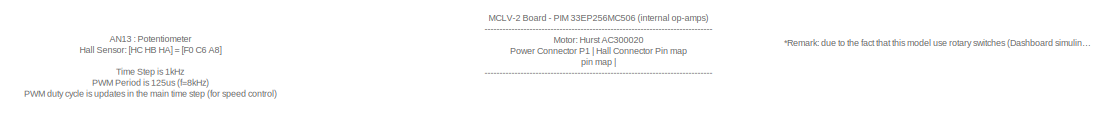
[diagram: root canvas - part 1/3, top left region]
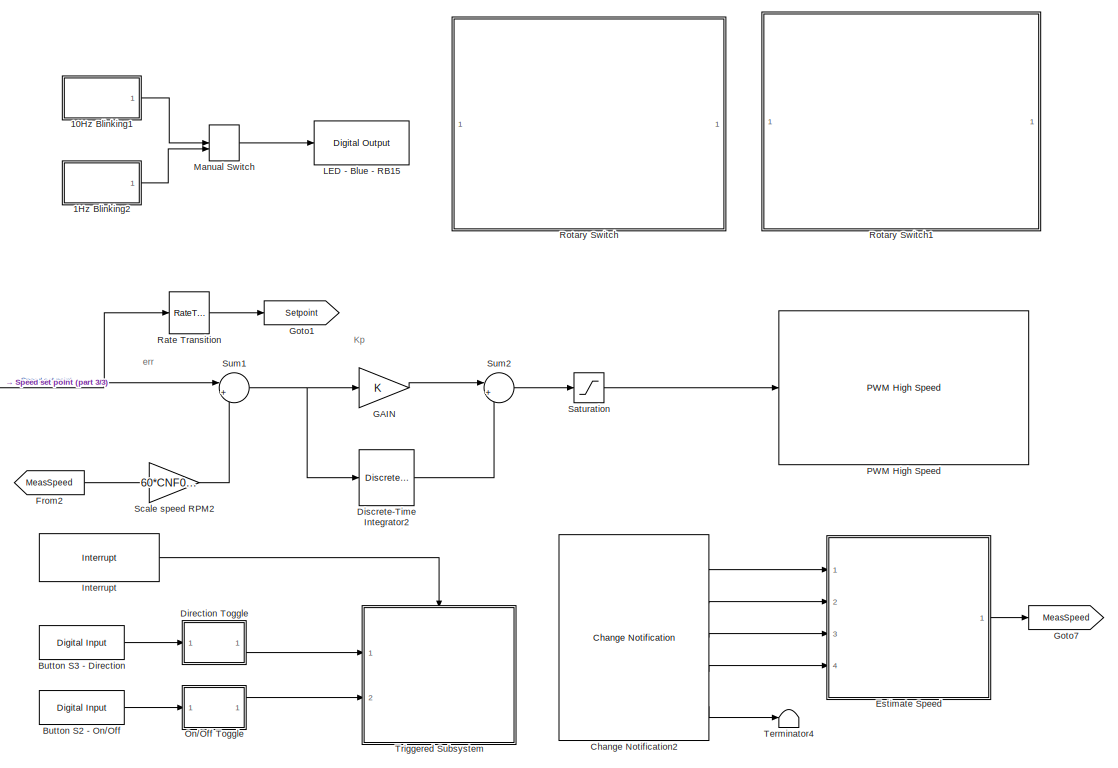
[diagram: root canvas - part 2/3, right side, full height]
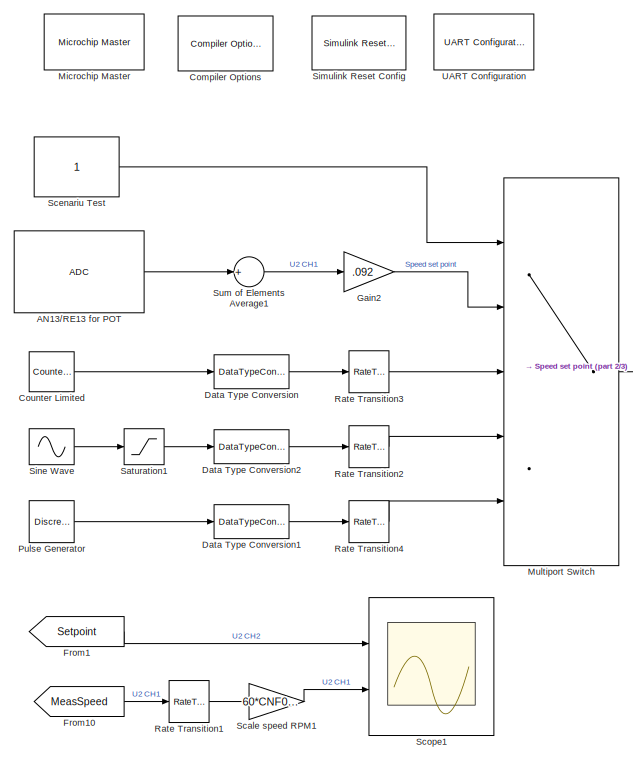
[diagram: root canvas - part 3/3, left side, full height]
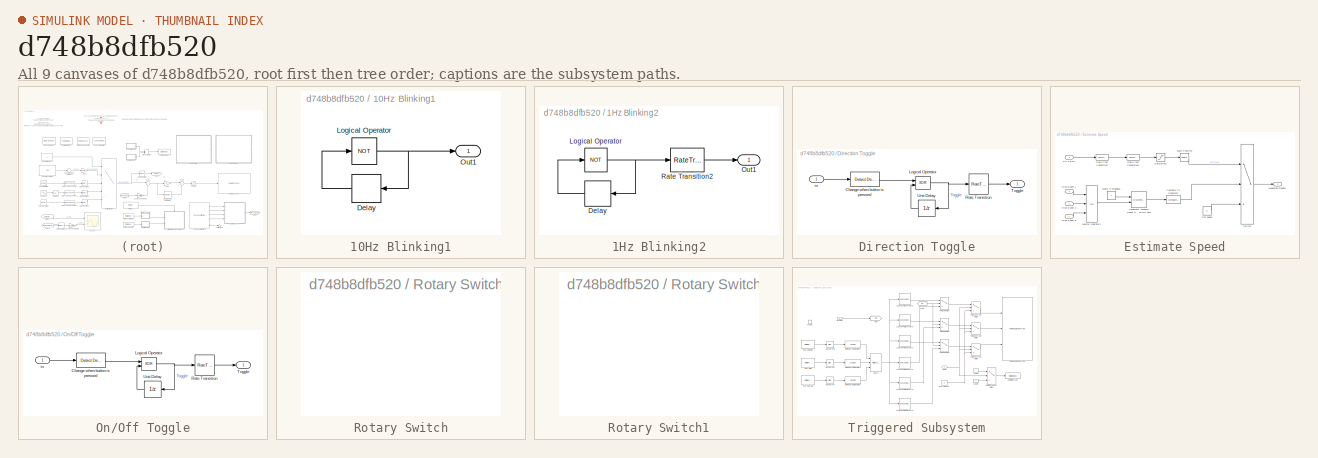
[diagram: thumbnail index - all 9 canvases of the model, root first then tree order]
MODEL slx_d748b8dfb520
KIND model
CONFIG AbsTol = auto
CONFIG EnableMultiTasking = on
CONFIG FixedStep = .001
CONFIG MaxStep = auto
CONFIG MinStep = auto
CONFIG RelTol = 1e-3
CONFIG SampleTimeConstraint = Unconstrained
CONFIG Solver = FixedStepDiscrete
CONFIG SolverName = FixedStepDiscrete
CONFIG StartTime = 0.0
CONFIG StopTime = inf
BLOCK [SubSystem] 10Hz Blinking1
  Ports = [0, 1]
  RequestExecContextInheritance = off
  Variant = off
BLOCK [Delay] 10Hz Blinking1/Delay
  DelayLength = 1
  InitialCondition = 0
  InputPortMap = u0
  InputProcessing = Inherited
  Ports = [1, 1]
  SampleTime = .05
BLOCK [Logic] 10Hz Blinking1/Logical Operator
  AllPortsSameDT = off
  Operator = NOT
  OutDataTypeStr = boolean
  Ports = [1, 1]
BLOCK [Outport] 10Hz Blinking1/Out1
  IconDisplay = Port number
BLOCK [SubSystem] 1Hz Blinking2
  Ports = [0, 1]
  RequestExecContextInheritance = off
  Variant = off
BLOCK [Delay] 1Hz Blinking2/Delay
  DelayLength = 1
  InitialCondition = 0
  InputPortMap = u0
  InputProcessing = Inherited
  Ports = [1, 1]
  SampleTime = .5
BLOCK [Logic] 1Hz Blinking2/Logical Operator
  AllPortsSameDT = off
  Operator = NOT
  OutDataTypeStr = boolean
  Ports = [1, 1]
BLOCK [Outport] 1Hz Blinking2/Out1
  IconDisplay = Port number
BLOCK [RateTransition] 1Hz Blinking2/Rate Transition2
  Deterministic = off
  OutPortSampleTime = .05
BLOCK [Reference] AN13//RE13 for POT  REF=MCHP_Blockset/Analog IO/ADC
  Ports = [0, 1]
  Priority = 5
  SourceBlock = MCHP_Blockset/Analog IO/ADC
  SourceProductName = MPLAB® Device Blocks for Simulink®
BLOCK [Reference] Button S2 - On//Off  REF=MCHP_Blockset/Digital IO/Digital Input
  Ports = [0, 1]
  SourceBlock = MCHP_Blockset/Digital IO/Digital Input
  SourceProductName = MPLAB® Device Blocks for Simulink®
  SourceType = Input driver for Digital Input Pins
BLOCK [Reference] Button S3 - Direction  REF=MCHP_Blockset/Digital IO/Digital Input
  Ports = [0, 1]
  SourceBlock = MCHP_Blockset/Digital IO/Digital Input
  SourceProductName = MPLAB® Device Blocks for Simulink®
  SourceType = Input driver for Digital Input Pins
BLOCK [Reference] Change Notification2  REF=MCHP_Blockset/Pulse Input//Output/Change Notification
  Ports = [0, 5]
  SourceBlock = MCHP_Blockset/Pulse Input//Output/Change Notification
  SourceProductName = MPLAB® Device Blocks for Simulink®
  SourceType = Input driver for Change Notification Peripheral
  UserDataPersistent = on
BLOCK [Reference] Compiler Options  REF=MCHP_Blockset/System Configuration/Compiler Options
  Ports = []
  Priority = 1
  SourceBlock = MCHP_Blockset/System Configuration/Compiler Options
  SourceProductName = MPLAB® Device Blocks for Simulink®
BLOCK [Reference] Counter Limited  REF=simulink/Sources/Counter
Limited
  Ports = [0, 1]
  SourceBlock = simulink/Sources/Counter\nLimited
  SourceProductBaseCode = SL
  SourceProductName = Simulink
  SourceType = Counter Limited
BLOCK [DataTypeConversion] Data Type Conversion
  ConvertRealWorld = Stored Integer (SI)
  OutDataTypeStr = uint16
  RndMeth = Simplest
  SaturateOnIntegerOverflow = off
BLOCK [DataTypeConversion] Data Type Conversion1
  ConvertRealWorld = Stored Integer (SI)
  OutDataTypeStr = uint16
  RndMeth = Simplest
  SaturateOnIntegerOverflow = off
BLOCK [DataTypeConversion] Data Type Conversion2
  ConvertRealWorld = Stored Integer (SI)
  OutDataTypeStr = uint16
  RndMeth = Simplest
  SaturateOnIntegerOverflow = off
BLOCK [SubSystem] Direction Toggle
  Ports = [1, 1]
  RequestExecContextInheritance = off
  Variant = off
BLOCK [Reference] Direction Toggle/Change when button is pressed  REF=simulink/Logic and Bit
Operations/Detect
Decrease
  Ports = [1, 1]
  SourceBlock = simulink/Logic and Bit\nOperations/Detect\nDecrease
  SourceProductBaseCode = SL
  SourceProductName = Simulink
  SourceType = Detect Decrease
BLOCK [Logic] Direction Toggle/Logical Operator
  AllPortsSameDT = off
  Operator = XOR
  OutDataTypeStr = boolean
  Ports = [2, 1]
BLOCK [RateTransition] Direction Toggle/Rate Transition
  Deterministic = off
  Integrity = off
BLOCK [Outport] Direction Toggle/Toggle
  IconDisplay = Port number
BLOCK [UnitDelay] Direction Toggle/Unit Delay
  SampleTime = -1
BLOCK [Inport] Direction Toggle/in
  IconDisplay = Port number
BLOCK [DiscreteIntegrator] Discrete-Time Integrator2
  ICPrevOutput = DiscIntNeverNeededParam
  ICPrevScaledInput = DiscIntNeverNeededParam
  LimitOutput = on
  LowerSaturationLimit = 0
  OutDataTypeStr = int16
  Ports = [1, 1]
  SampleTime = -1
  SaturateOnIntegerOverflow = on
  UpperSaturationLimit = PWMmax
  gainval = 20
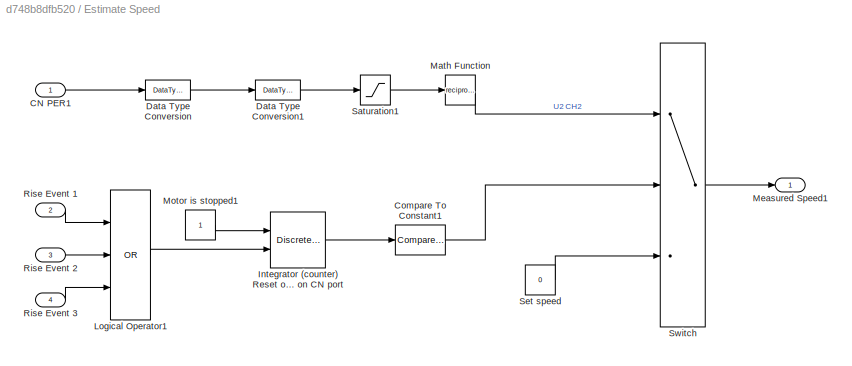
BLOCK [SubSystem] Estimate Speed
  Ports = [4, 1]
  RequestExecContextInheritance = off
  Variant = off
BLOCK [Inport] Estimate Speed/CN PER1
  IconDisplay = Port number
BLOCK [Reference] Estimate Speed/Compare To Constant1  REF=simulink/Logic and Bit
Operations/Compare
To Constant
  Ports = [1, 1]
  SourceBlock = simulink/Logic and Bit\nOperations/Compare\nTo Constant
  SourceProductBaseCode = SL
  SourceProductName = Simulink
  SourceType = Compare To Constant
BLOCK [DataTypeConversion] Estimate Speed/Data Type Conversion
  OutDataTypeStr = uint16
  RndMeth = Floor
  SaturateOnIntegerOverflow = off
BLOCK [DataTypeConversion] Estimate Speed/Data Type Conversion1
  OutDataTypeStr = double
  RndMeth = Floor
  SaturateOnIntegerOverflow = off
BLOCK [DiscreteIntegrator] Estimate Speed/Integrator (counter) Reset on each rise edge detected on CN port
  ExternalReset = level
  ICPrevOutput = DiscIntNeverNeededParam
  ICPrevScaledInput = DiscIntNeverNeededParam
  IntegratorMethod = Accumulation: Forward Euler
  LimitOutput = on
  LowerSaturationLimit = 0
  OutDataTypeStr = uint16
  Ports = [2, 1]
  SampleTime = -1
  SaturateOnIntegerOverflow = on
  UpperSaturationLimit = 255
  gainval = 1
BLOCK [Logic] Estimate Speed/Logical Operator1
  AllPortsSameDT = off
  Inputs = 3
  Operator = OR
  OutDataTypeStr = boolean
  Ports = [3, 1]
BLOCK [Math] Estimate Speed/Math Function
  Operator = reciprocal
  OutDataTypeStr = double
  OutputSignalType = real
  Ports = [1, 1]
BLOCK [Outport] Estimate Speed/Measured Speed1
  IconDisplay = Port number
BLOCK [Constant] Estimate Speed/Motor is stopped1
  OutDataTypeStr = Inherit: Inherit via back propagation
BLOCK [Inport] Estimate Speed/Rise Event 1
  IconDisplay = Port number
  Port = 2
BLOCK [Inport] Estimate Speed/Rise Event 2
  IconDisplay = Port number
  Port = 3
BLOCK [Inport] Estimate Speed/Rise Event 3
  IconDisplay = Port number
  Port = 4
BLOCK [Saturate] Estimate Speed/Saturation1
  InputPortMap = u0
  LowerLimit = 1
  Ports = [1, 1]
  UpperLimit = 65535
BLOCK [Constant] Estimate Speed/Set speed
  OutDataTypeStr = Inherit: Inherit via back propagation
  Value = 0
BLOCK [Switch] Estimate Speed/Switch
  Criteria = u2 ~= 0
  InputSameDT = off
  SaturateOnIntegerOverflow = off
BLOCK [From] From1
  GotoTag = Setpoint
BLOCK [From] From10
  GotoTag = MeasSpeed
BLOCK [From] From2
  GotoTag = MeasSpeed
BLOCK [Gain] GAIN
  OutDataTypeStr = int16
  ParamDataTypeStr = fixdt(1,16,10)
  RndMeth = Round
BLOCK [Gain] Gain2
  Gain = .092
  OutDataTypeStr = uint16
  ParamDataTypeStr = Inherit: Inherit from 'Gain'
  RndMeth = Round
BLOCK [Goto] Goto1
  GotoTag = Setpoint
BLOCK [Goto] Goto7
  GotoTag = MeasSpeed
BLOCK [Reference] Interrupt  REF=MCHP_Blockset/System Functions/Interrupt
  Ports = [0, 1]
  SourceBlock = MCHP_Blockset/System Functions/Interrupt
  SourceProductName = MPLAB® Device Blocks for Simulink®
  SourceType = Interruption (Call Simulink Subfunction)
BLOCK [Reference] LED - Blue - RB15  REF=MCHP_Blockset/Digital IO/Digital Output
  Ports = [1]
  SourceBlock = MCHP_Blockset/Digital IO/Digital Output
  SourceProductName = MPLAB® Device Blocks for Simulink®
BLOCK [ManualSwitch] Manual Switch
  CurrentSetting = 0
BLOCK [Reference] Microchip Master  REF=MCHP_Blockset/System Configuration/Microchip Master
  Ports = []
  Priority = 1
  SourceBlock = MCHP_Blockset/System Configuration/Microchip Master
  SourceProductName = MPLAB® Device Blocks for Simulink®
BLOCK [MultiPortSwitch] Multiport Switch
  InputSameDT = off
  Inputs = 4
  Ports = [5, 1]
  SaturateOnIntegerOverflow = off
BLOCK [SubSystem] On//Off Toggle
  Ports = [1, 1]
  RequestExecContextInheritance = off
  Variant = off
BLOCK [Reference] On//Off Toggle/Change when button is pressed  REF=simulink/Logic and Bit
Operations/Detect
Decrease
  Ports = [1, 1]
  SourceBlock = simulink/Logic and Bit\nOperations/Detect\nDecrease
  SourceProductBaseCode = SL
  SourceProductName = Simulink
  SourceType = Detect Decrease
BLOCK [Logic] On//Off Toggle/Logical Operator
  AllPortsSameDT = off
  Operator = XOR
  OutDataTypeStr = boolean
  Ports = [2, 1]
BLOCK [RateTransition] On//Off Toggle/Rate Transition
  Deterministic = off
  Integrity = off
BLOCK [Outport] On//Off Toggle/Toggle
  IconDisplay = Port number
BLOCK [UnitDelay] On//Off Toggle/Unit Delay
  SampleTime = -1
BLOCK [Inport] On//Off Toggle/in
  IconDisplay = Port number
BLOCK [Reference] PWM High Speed  REF=MCHP_Blockset/PWM IO/PWM High Speed
  Ports = [1]
  SourceBlock = MCHP_Blockset/PWM IO/PWM High Speed
  SourceProductName = MPLAB® Device Blocks for Simulink®
  UserDataPersistent = on
BLOCK [DiscretePulseGenerator] Pulse Generator
  Amplitude = 2000
  Period = 10000
  Ports = [0, 1]
  PulseWidth = 5000
  SampleTime = 0.001
BLOCK [RateTransition] Rate Transition
  Deterministic = off
  OutPortSampleTime = 0.01
BLOCK [RateTransition] Rate Transition1
  Deterministic = off
  OutPortSampleTime = 0.01
BLOCK [RateTransition] Rate Transition2
  Deterministic = off
BLOCK [RateTransition] Rate Transition3
BLOCK [RateTransition] Rate Transition4
  Deterministic = off
BLOCK [SubSystem] Rotary Switch
  DialogController = hmiCreateDDGDialog
  IsWebBlock = on
  MaskHideContents = on
  Ports = []
  RequestExecContextInheritance = off
  Variant = off
BLOCK [SubSystem] Rotary Switch1
  DialogController = hmiCreateDDGDialog
  IsWebBlock = on
  MaskHideContents = on
  Ports = []
  RequestExecContextInheritance = off
  Variant = off
BLOCK [Saturate] Saturation
  InputPortMap = u0
  LinearizeAsGain = off
  LowerLimit = 0
  OutDataTypeStr = uint16
  Ports = [1, 1]
  UpperLimit = PWMmax
BLOCK [Saturate] Saturation1
  InputPortMap = u0
  LinearizeAsGain = off
  LowerLimit = 0
  Ports = [1, 1]
  UpperLimit = 2000
BLOCK [Gain] Scale speed RPM1
  Gain = 60*CNF0max / (5*0.1)
  OutDataTypeStr = uint16
  ParamDataTypeStr = Inherit: Inherit via internal rule
  RndMeth = Round
BLOCK [Gain] Scale speed RPM2
  Gain = 60*CNF0max / (5*0.1)
  OutDataTypeStr = uint16
  ParamDataTypeStr = Inherit: Inherit via internal rule
  RndMeth = Round
BLOCK [Constant] Scenariu Test
  OutDataTypeStr = uint16
BLOCK [Scope] Scope1
  NumInputPorts = 2
  Ports = [2]
  ScopeSpecificationString = Simulink.scopes.TimeScopeBlockCfg('CurrentConfiguration', extmgr.ConfigurationSet(extmgr.Configuration('Core','General UI',true),extmgr.Configuration('Core','Source UI',true),extmgr.Configuration('Sources','WiredSimulink',true,'DataLoggingVariableName','ScopeData1'),extmgr.Configuration('Visuals','Time Domain',true,'SerializedDisplays',{struct('MinYLimReal','-376.375','MaxYLimReal','3387.375','YLa...<+1629ch>
BLOCK [Reference] Simulink Reset Config  REF=MCHP_Blockset/System Configuration/Simulink Reset
Config
  Ports = []
  SourceBlock = MCHP_Blockset/System Configuration/Simulink Reset\nConfig
  SourceProductName = MPLAB® Device Blocks for Simulink®
BLOCK [Sin] Sine Wave
  Amplitude = 2000
  Ports = [0, 1]
  SampleTime = 0.01
  Samples = 4096
  SineType = Sample based
BLOCK [Sum] Sum of Elements Average1
  AccumDataTypeStr = uint16
  InputSameDT = off
  Inputs = +
  OutDataTypeStr = uint16
  Ports = [1, 1]
  SaturateOnIntegerOverflow = off
BLOCK [Sum] Sum1
  AccumDataTypeStr = fixdt(1,16,-1)
  IconShape = round
  InputSameDT = off
  Inputs = |+-
  OutDataTypeStr = fixdt(1,16,-1)
  Ports = [2, 1]
BLOCK [Sum] Sum2
  AccumDataTypeStr = int16
  IconShape = round
  InputSameDT = off
  Inputs = |++
  OutDataTypeStr = uint16
  Ports = [2, 1]
BLOCK [Terminator] Terminator4
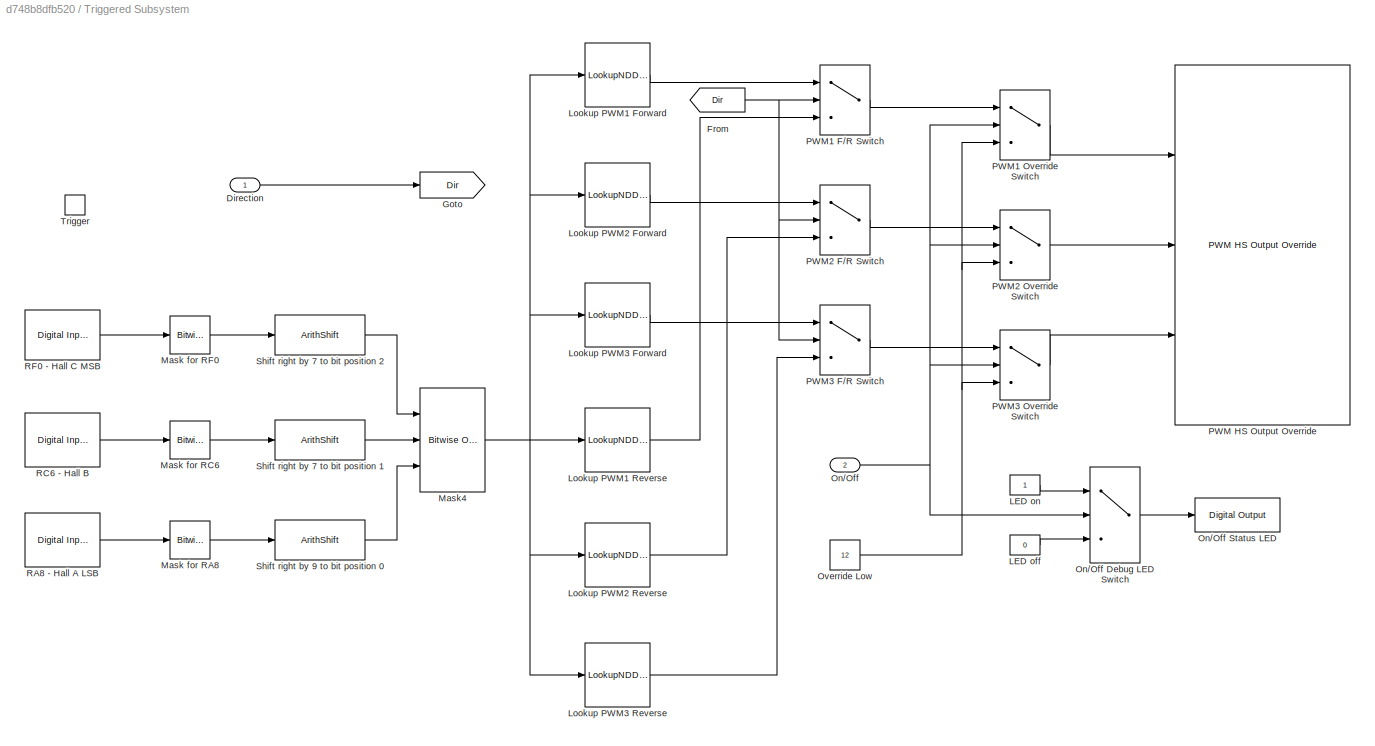
BLOCK [SubSystem] Triggered Subsystem
  Ports = [2, 0, 0, 1]
  RequestExecContextInheritance = off
  TreatAsAtomicUnit = on
  Variant = off
BLOCK [Inport] Triggered Subsystem/Direction
  IconDisplay = Port number
BLOCK [From] Triggered Subsystem/From
  GotoTag = Dir
BLOCK [Goto] Triggered Subsystem/Goto
  GotoTag = Dir
BLOCK [Constant] Triggered Subsystem/LED off
  OutDataTypeStr = boolean
  Value = 0
BLOCK [Constant] Triggered Subsystem/LED on
  OutDataTypeStr = boolean
BLOCK [LookupNDDirect] Triggered Subsystem/Lookup PWM1 Forward
  NumberOfTableDimensions = 1
  Ports = [1, 1]
  Table = [12 13 4 12 12 13 4 12]
  TableDataTypeStr = uint16
BLOCK [LookupNDDirect] Triggered Subsystem/Lookup PWM1 Reverse
  NumberOfTableDimensions = 1
  Ports = [1, 1]
  Table = [12 4 13 12 12 4 13 12]
  TableDataTypeStr = uint16
BLOCK [LookupNDDirect] Triggered Subsystem/Lookup PWM2 Forward
  NumberOfTableDimensions = 1
  Ports = [1, 1]
  Table = [12 12 13 13 4 4 12 12]
  TableDataTypeStr = uint16
BLOCK [LookupNDDirect] Triggered Subsystem/Lookup PWM2 Reverse
  NumberOfTableDimensions = 1
  Ports = [1, 1]
  Table = [12 12 4 4 13 13 12 12]
  TableDataTypeStr = uint16
BLOCK [LookupNDDirect] Triggered Subsystem/Lookup PWM3 Forward
  NumberOfTableDimensions = 1
  Ports = [1, 1]
  Table = [12 4 12 4 13 12 13 12]
  TableDataTypeStr = uint16
BLOCK [LookupNDDirect] Triggered Subsystem/Lookup PWM3 Reverse
  NumberOfTableDimensions = 1
  Ports = [1, 1]
  Table = [12 13 12 13 4 12 4 12]
  TableDataTypeStr = uint16
BLOCK [Reference] Triggered Subsystem/Mask for RA8  REF=simulink/Logic and Bit
Operations/Bitwise
Operator
  Ports = [1, 1]
  SourceBlock = simulink/Logic and Bit\nOperations/Bitwise\nOperator
  SourceProductBaseCode = SL
  SourceProductName = Simulink
  SourceType = Bitwise Operator
BLOCK [Reference] Triggered Subsystem/Mask for RC6  REF=simulink/Logic and Bit
Operations/Bitwise
Operator
  Ports = [1, 1]
  SourceBlock = simulink/Logic and Bit\nOperations/Bitwise\nOperator
  SourceProductBaseCode = SL
  SourceProductName = Simulink
  SourceType = Bitwise Operator
BLOCK [Reference] Triggered Subsystem/Mask for RF0  REF=simulink/Logic and Bit
Operations/Bitwise
Operator
  Ports = [1, 1]
  SourceBlock = simulink/Logic and Bit\nOperations/Bitwise\nOperator
  SourceProductBaseCode = SL
  SourceProductName = Simulink
  SourceType = Bitwise Operator
BLOCK [Reference] Triggered Subsystem/Mask4  REF=simulink/Logic and Bit
Operations/Bitwise
Operator
  Ports = [3, 1]
  SourceBlock = simulink/Logic and Bit\nOperations/Bitwise\nOperator
  SourceProductBaseCode = SL
  SourceProductName = Simulink
  SourceType = Bitwise Operator
BLOCK [Inport] Triggered Subsystem/On//Off
  IconDisplay = Port number
  Port = 2
BLOCK [Switch] Triggered Subsystem/On//Off Debug LED Switch
  Criteria = u2 ~= 0
  InputSameDT = off
  SaturateOnIntegerOverflow = off
BLOCK [Reference] Triggered Subsystem/On//Off Status LED  REF=MCHP_Blockset/Digital IO/Digital Output
  Ports = [1]
  SourceBlock = MCHP_Blockset/Digital IO/Digital Output
  SourceProductName = MPLAB® Device Blocks for Simulink®
BLOCK [Constant] Triggered Subsystem/Override Low
  OutDataTypeStr = uint16
  Value = 12
BLOCK [Reference] Triggered Subsystem/PWM HS Output Override  REF=MCHP_Blockset/PWM IO/PWM HS
Output Override
  Ports = [3]
  SourceBlock = MCHP_Blockset/PWM IO/PWM HS\nOutput Override
  SourceProductName = MPLAB® Device Blocks for Simulink®
  SourceType = High Speed PWM Override outputs
  UserDataPersistent = on
BLOCK [Switch] Triggered Subsystem/PWM1 F//R Switch
  Criteria = u2 ~= 0
  InputSameDT = off
  SaturateOnIntegerOverflow = off
BLOCK [Switch] Triggered Subsystem/PWM1 Override Switch
  Criteria = u2 ~= 0
  InputSameDT = off
  SaturateOnIntegerOverflow = off
BLOCK [Switch] Triggered Subsystem/PWM2 F//R Switch
  Criteria = u2 ~= 0
  InputSameDT = off
  SaturateOnIntegerOverflow = off
BLOCK [Switch] Triggered Subsystem/PWM2 Override Switch
  Criteria = u2 ~= 0
  InputSameDT = off
  SaturateOnIntegerOverflow = off
BLOCK [Switch] Triggered Subsystem/PWM3 F//R Switch
  Criteria = u2 ~= 0
  InputSameDT = off
  SaturateOnIntegerOverflow = off
BLOCK [Switch] Triggered Subsystem/PWM3 Override Switch
  Criteria = u2 ~= 0
  InputSameDT = off
  SaturateOnIntegerOverflow = off
BLOCK [Reference] Triggered Subsystem/RA8 - Hall A LSB  REF=MCHP_Blockset/Digital IO/Digital Input
  Ports = [0, 1]
  SourceBlock = MCHP_Blockset/Digital IO/Digital Input
  SourceProductName = MPLAB® Device Blocks for Simulink®
  SourceType = Input driver for Digital Input Pins
BLOCK [Reference] Triggered Subsystem/RC6 - Hall B   REF=MCHP_Blockset/Digital IO/Digital Input
  Ports = [0, 1]
  SourceBlock = MCHP_Blockset/Digital IO/Digital Input
  SourceProductName = MPLAB® Device Blocks for Simulink®
  SourceType = Input driver for Digital Input Pins
BLOCK [Reference] Triggered Subsystem/RF0 - Hall C MSB   REF=MCHP_Blockset/Digital IO/Digital Input
  Ports = [0, 1]
  SourceBlock = MCHP_Blockset/Digital IO/Digital Input
  SourceProductName = MPLAB® Device Blocks for Simulink®
  SourceType = Input driver for Digital Input Pins
BLOCK [ArithShift] Triggered Subsystem/Shift right by 7 to bit position 1
  BitShiftNumber = 5
  InputPortMap = u0
  Ports = [1, 1]
BLOCK [ArithShift] Triggered Subsystem/Shift right by 7 to bit position 2
  BitShiftNumber = -2
  InputPortMap = u0
  Ports = [1, 1]
BLOCK [ArithShift] Triggered Subsystem/Shift right by 9 to bit position 0
  BitShiftNumber = 8
  InputPortMap = u0
  Ports = [1, 1]
BLOCK [TriggerPort] Triggered Subsystem/Trigger
  Ports = []
  StatesWhenEnabling = held
  TriggerType = function-call
  VariantControl = Variant
BLOCK [Reference] UART Configuration  REF=MCHP_Blockset/BUS UART/UART Configuration
  Ports = []
  SourceBlock = MCHP_Blockset/BUS UART/UART Configuration
  SourceProductName = MPLAB® Device Blocks for Simulink®
  SourceType = Configuration for UART peripheral
ANNOTATION (root): *Remark: due to the fact that this model use rotary switches (Dashboard simulink library), build this model with Matlab R2015a or newer.
ANNOTATION (root): AN13 : Potentiometer Hall Sensor: [HC HB HA] = [F0 C6 A8] Time Step is 1kHz PWM Period is 125us (f=8kHz) PWM duty cycle is updates in the main time step (for speed control) from the ADC (pot) alone, as in app note AN957 open loop configuration PWM channels are asynchrousnly updated (on / off) on each Hall sensor change detected thru CN interrupt
ANNOTATION (root): Kp
ANNOTATION (root): MCLV-2 Board - PIM 33EP256MC506 (internal op-amps) ---------------------------------------------------------------------------- Motor: Hurst AC300020 Power Connector P1 | Hall Connector Pin map pin map | ---------------------------------------------------------------------------- 1 => M1 | 1 => +5V 2 => M2 | 2 => Gnd 3 => M3 | 3 => HC 4 => Gnd | 4 => HA | 5 => HB
ANNOTATION (root): err
LINE 10Hz Blinking1/Delay:1 -> 10Hz Blinking1/Logical Operator:1
NET 10Hz Blinking1/Logical Operator:1 -> 10Hz Blinking1/Delay:1, 10Hz Blinking1/Out1:1
LINE 10Hz Blinking1:1 -> Manual Switch:1
LINE 1Hz Blinking2/Delay:1 -> 1Hz Blinking2/Logical Operator:1
NET 1Hz Blinking2/Logical Operator:1 -> 1Hz Blinking2/Delay:1, 1Hz Blinking2/Rate Transition2:1
LINE 1Hz Blinking2/Rate Transition2:1 -> 1Hz Blinking2/Out1:1
LINE 1Hz Blinking2:1 -> Manual Switch:2
LINE AN13//RE13 for POT:1 -> Sum of Elements Average1:1
LINE Button S2 - On//Off:1 -> On//Off Toggle:1
LINE Button S3 - Direction:1 -> Direction Toggle:1
LINE Change Notification2:1 -> Estimate Speed:1
LINE Change Notification2:2 -> Estimate Speed:2
LINE Change Notification2:3 -> Estimate Speed:3
LINE Change Notification2:4 -> Estimate Speed:4
LINE Change Notification2:5 -> Terminator4:1
LINE Counter Limited:1 -> Data Type Conversion:1
LINE Data Type Conversion1:1 -> Rate Transition4:1
LINE Data Type Conversion2:1 -> Rate Transition2:1
LINE Data Type Conversion:1 -> Rate Transition3:1
LINE Direction Toggle/Change when button is pressed:1 -> Direction Toggle/Logical Operator:1
NET Direction Toggle/Logical Operator:1 -> Direction Toggle/Rate Transition:1, Direction Toggle/Unit Delay:1
LINE Direction Toggle/Rate Transition:1 -> Direction Toggle/Toggle:1
LINE Direction Toggle/Unit Delay:1 -> Direction Toggle/Logical Operator:2
LINE Direction Toggle/in:1 -> Direction Toggle/Change when button is pressed:1
LINE Direction Toggle:1 -> Triggered Subsystem:1
LINE Discrete-Time Integrator2:1 -> Sum2:2
LINE Estimate Speed/CN PER1:1 -> Estimate Speed/Data Type Conversion:1
LINE Estimate Speed/Compare To Constant1:1 -> Estimate Speed/Switch:2
LINE Estimate Speed/Data Type Conversion1:1 -> Estimate Speed/Saturation1:1
LINE Estimate Speed/Data Type Conversion:1 -> Estimate Speed/Data Type Conversion1:1
LINE Estimate Speed/Integrator (counter) Reset on each rise edge detected on CN port:1 -> Estimate Speed/Compare To Constant1:1
LINE Estimate Speed/Logical Operator1:1 -> Estimate Speed/Integrator (counter) Reset on each rise edge detected on CN port:2
LINE Estimate Speed/Math Function:1 -> Estimate Speed/Switch:1
LINE Estimate Speed/Motor is stopped1:1 -> Estimate Speed/Integrator (counter) Reset on each rise edge detected on CN port:1
LINE Estimate Speed/Rise Event 1:1 -> Estimate Speed/Logical Operator1:1
LINE Estimate Speed/Rise Event 2:1 -> Estimate Speed/Logical Operator1:2
LINE Estimate Speed/Rise Event 3:1 -> Estimate Speed/Logical Operator1:3
LINE Estimate Speed/Saturation1:1 -> Estimate Speed/Math Function:1
LINE Estimate Speed/Set speed:1 -> Estimate Speed/Switch:3
LINE Estimate Speed/Switch:1 -> Estimate Speed/Measured Speed1:1
LINE Estimate Speed:1 -> Goto7:1
LINE From10:1 -> Rate Transition1:1
LINE From1:1 -> Scope1:1
LINE From2:1 -> Scale speed RPM2:1
LINE GAIN:1 -> Sum2:1
LINE Gain2:1 -> Multiport Switch:2
LINE Interrupt:1 -> Triggered Subsystem:trigger
LINE Manual Switch:1 -> LED - Blue - RB15:1
NET Multiport Switch:1 -> Rate Transition:1, Sum1:1
LINE On//Off Toggle/Change when button is pressed:1 -> On//Off Toggle/Logical Operator:1
NET On//Off Toggle/Logical Operator:1 -> On//Off Toggle/Rate Transition:1, On//Off Toggle/Unit Delay:1
LINE On//Off Toggle/Rate Transition:1 -> On//Off Toggle/Toggle:1
LINE On//Off Toggle/Unit Delay:1 -> On//Off Toggle/Logical Operator:2
LINE On//Off Toggle/in:1 -> On//Off Toggle/Change when button is pressed:1
LINE On//Off Toggle:1 -> Triggered Subsystem:2
LINE Pulse Generator:1 -> Data Type Conversion1:1
LINE Rate Transition1:1 -> Scale speed RPM1:1
LINE Rate Transition2:1 -> Multiport Switch:4
LINE Rate Transition3:1 -> Multiport Switch:3
LINE Rate Transition4:1 -> Multiport Switch:5
LINE Rate Transition:1 -> Goto1:1
LINE Saturation1:1 -> Data Type Conversion2:1
LINE Saturation:1 -> PWM High Speed:1
LINE Scale speed RPM1:1 -> Scope1:2
LINE Scale speed RPM2:1 -> Sum1:2
LINE Scenariu Test:1 -> Multiport Switch:1
LINE Sine Wave:1 -> Saturation1:1
LINE Sum of Elements Average1:1 -> Gain2:1
NET Sum1:1 -> Discrete-Time Integrator2:1, GAIN:1
LINE Sum2:1 -> Saturation:1
LINE Triggered Subsystem/Direction:1 -> Triggered Subsystem/Goto:1
NET Triggered Subsystem/From:1 -> Triggered Subsystem/PWM1 F//R Switch:2, Triggered Subsystem/PWM2 F//R Switch:2, Triggered Subsystem/PWM3 F//R Switch:2
LINE Triggered Subsystem/LED off:1 -> Triggered Subsystem/On//Off Debug LED Switch:3
LINE Triggered Subsystem/LED on:1 -> Triggered Subsystem/On//Off Debug LED Switch:1
LINE Triggered Subsystem/Lookup PWM1 Forward:1 -> Triggered Subsystem/PWM1 F//R Switch:1
LINE Triggered Subsystem/Lookup PWM1 Reverse:1 -> Triggered Subsystem/PWM1 F//R Switch:3
LINE Triggered Subsystem/Lookup PWM2 Forward:1 -> Triggered Subsystem/PWM2 F//R Switch:1
LINE Triggered Subsystem/Lookup PWM2 Reverse:1 -> Triggered Subsystem/PWM2 F//R Switch:3
LINE Triggered Subsystem/Lookup PWM3 Forward:1 -> Triggered Subsystem/PWM3 F//R Switch:1
LINE Triggered Subsystem/Lookup PWM3 Reverse:1 -> Triggered Subsystem/PWM3 F//R Switch:3
LINE Triggered Subsystem/Mask for RA8:1 -> Triggered Subsystem/Shift right by 9 to bit position 0:1
LINE Triggered Subsystem/Mask for RC6:1 -> Triggered Subsystem/Shift right by 7 to bit position 1:1
LINE Triggered Subsystem/Mask for RF0:1 -> Triggered Subsystem/Shift right by 7 to bit position 2:1
NET Triggered Subsystem/Mask4:1 -> Triggered Subsystem/Lookup PWM1 Forward:1, Triggered Subsystem/Lookup PWM1 Reverse:1, Triggered Subsystem/Lookup PWM2 Forward:1, Triggered Subsystem/Lookup PWM2 Reverse:1, Triggered Subsystem/Lookup PWM3 Forward:1, Triggered Subsystem/Lookup PWM3 Reverse:1
LINE Triggered Subsystem/On//Off Debug LED Switch:1 -> Triggered Subsystem/On//Off Status LED:1
NET Triggered Subsystem/On//Off:1 -> Triggered Subsystem/On//Off Debug LED Switch:2, Triggered Subsystem/PWM1 Override Switch:2, Triggered Subsystem/PWM2 Override Switch:2, Triggered Subsystem/PWM3 Override Switch:2
NET Triggered Subsystem/Override Low:1 -> Triggered Subsystem/PWM1 Override Switch:3, Triggered Subsystem/PWM2 Override Switch:3, Triggered Subsystem/PWM3 Override Switch:3
LINE Triggered Subsystem/PWM1 F//R Switch:1 -> Triggered Subsystem/PWM1 Override Switch:1
LINE Triggered Subsystem/PWM1 Override Switch:1 -> Triggered Subsystem/PWM HS Output Override:1
LINE Triggered Subsystem/PWM2 F//R Switch:1 -> Triggered Subsystem/PWM2 Override Switch:1
LINE Triggered Subsystem/PWM2 Override Switch:1 -> Triggered Subsystem/PWM HS Output Override:2
LINE Triggered Subsystem/PWM3 F//R Switch:1 -> Triggered Subsystem/PWM3 Override Switch:1
LINE Triggered Subsystem/PWM3 Override Switch:1 -> Triggered Subsystem/PWM HS Output Override:3
LINE Triggered Subsystem/RA8 - Hall A LSB:1 -> Triggered Subsystem/Mask for RA8:1
LINE Triggered Subsystem/RC6 - Hall B :1 -> Triggered Subsystem/Mask for RC6:1
LINE Triggered Subsystem/RF0 - Hall C MSB :1 -> Triggered Subsystem/Mask for RF0:1
LINE Triggered Subsystem/Shift right by 7 to bit position 1:1 -> Triggered Subsystem/Mask4:2
LINE Triggered Subsystem/Shift right by 7 to bit position 2:1 -> Triggered Subsystem/Mask4:1
LINE Triggered Subsystem/Shift right by 9 to bit position 0:1 -> Triggered Subsystem/Mask4:3
note: NET lines group one-source signal fan-out (src -> all destinations, sorted); 1:1 wires keep LINE
